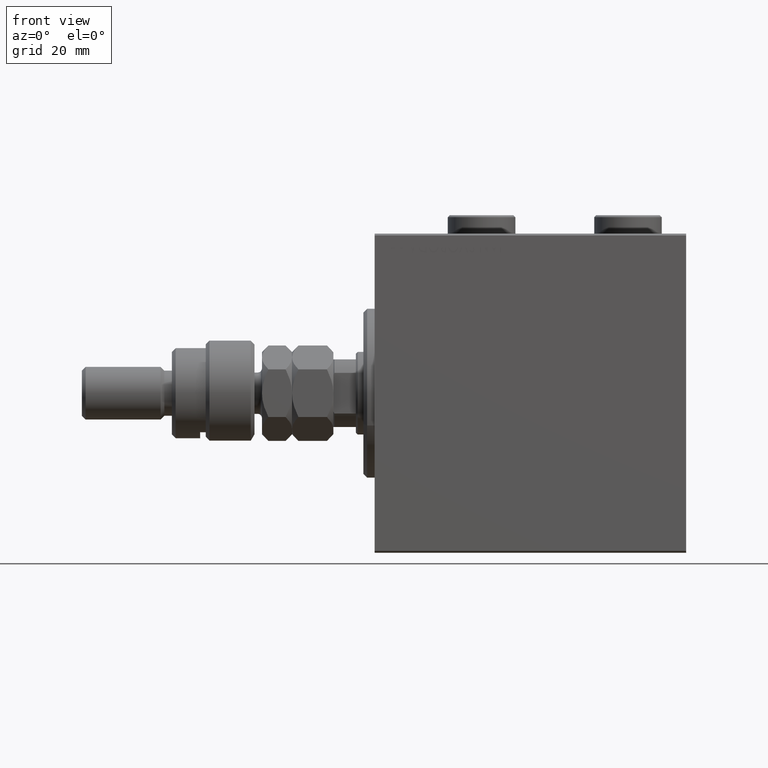
[diagram: clean part render]
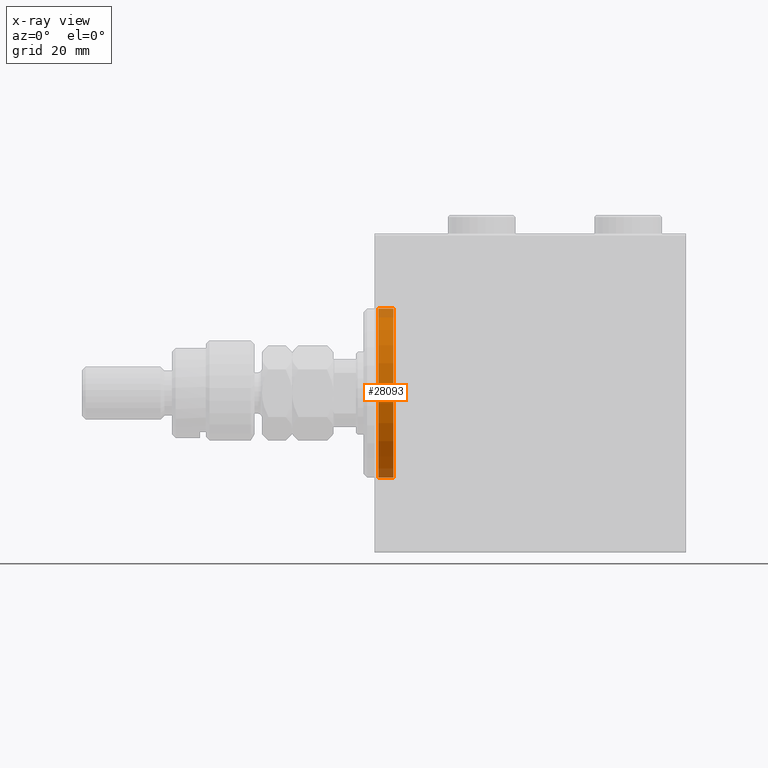
[diagram: x-ray — body ghosted, one internal face saturated and labeled with its STEP entity id]
A machine part, front view, then the same camera in x-ray: the body is ghosted and one INTERNAL B-rep face — a face not visible from any outside direction — is saturated and labeled: STEP entity #28093.
In plain terms, the highlighted cylindrical surface (partial cylindrical patch) has radius 22.5 mm, axis along (-1, -0, -0).
Its self-contained STEP definition (entity closure, byte-faithful):
#2053 = FACE_OUTER_BOUND ( 'NONE', #6399, .T. ) ;
#3164 = LINE ( 'NONE', #25480, #30526 ) ;
#4933 = VECTOR ( 'NONE', #27791, 1000.000000000000000 ) ;
#6399 = EDGE_LOOP ( 'NONE', ( #11376, #21808, #44462, #25880 ) ) ;
#6447 = AXIS2_PLACEMENT_3D ( 'NONE', #24112, #39543, #9811 ) ;
#7025 = DIRECTION ( 'NONE',  ( -1.000000000000000000, 0.000000000000000000, 0.000000000000000000 ) ) ;
#8901 = EDGE_CURVE ( 'NONE', #11849, #46112, #3164, .T. ) ;
#9811 = DIRECTION ( 'NONE',  ( 0.000000000000000000, 0.000000000000000000, 1.000000000000000000 ) ) ;
#10341 = LINE ( 'NONE', #25118, #4933 ) ;
#10368 = VERTEX_POINT ( 'NONE', #19061 ) ;
#11376 = ORIENTED_EDGE ( 'NONE', *, *, #25262, .F. ) ;
#11849 = VERTEX_POINT ( 'NONE', #21311 ) ;
#12929 = CIRCLE ( 'NONE', #39958, 22.50000000000000355 ) ;
#16417 = AXIS2_PLACEMENT_3D ( 'NONE', #33126, #18838, #37461 ) ;
#18526 = CARTESIAN_POINT ( 'NONE',  ( 5.000000000000000000, 2.755455298081545172E-15, -22.50000000000000355 ) ) ;
#18838 = DIRECTION ( 'NONE',  ( -1.000000000000000000, 0.000000000000000000, 0.000000000000000000 ) ) ;
#19061 = CARTESIAN_POINT ( 'NONE',  ( 1.000000000000014655, 2.755455298081545172E-15, -22.50000000000000355 ) ) ;
#21311 = CARTESIAN_POINT ( 'NONE',  ( 5.000000000000000000, 0.000000000000000000, 22.50000000000000355 ) ) ;
#21808 = ORIENTED_EDGE ( 'NONE', *, *, #30215, .T. ) ;
#21821 = DIRECTION ( 'NONE',  ( 0.000000000000000000, 0.000000000000000000, -1.000000000000000000 ) ) ;
#24112 = CARTESIAN_POINT ( 'NONE',  ( 5.000000000000000000, 0.000000000000000000, 0.000000000000000000 ) ) ;
#24813 = CYLINDRICAL_SURFACE ( 'NONE', #6447, 22.50000000000000355 ) ;
#25118 = CARTESIAN_POINT ( 'NONE',  ( 5.000000000000000000, 2.755455298081545172E-15, -22.50000000000000355 ) ) ;
#25262 = EDGE_CURVE ( 'NONE', #34543, #11849, #28774, .T. ) ;
#25480 = CARTESIAN_POINT ( 'NONE',  ( 5.000000000000000000, 0.000000000000000000, 22.50000000000000355 ) ) ;
#25880 = ORIENTED_EDGE ( 'NONE', *, *, #8901, .F. ) ;
#27791 = DIRECTION ( 'NONE',  ( -1.000000000000000000, -0.000000000000000000, -0.000000000000000000 ) ) ;
#28093 = ADVANCED_FACE ( 'NONE', ( #2053 ), #24813, .F. ) ;
#28774 = CIRCLE ( 'NONE', #16417, 22.50000000000000355 ) ;
#30060 = DIRECTION ( 'NONE',  ( -1.000000000000000000, -0.000000000000000000, -0.000000000000000000 ) ) ;
#30215 = EDGE_CURVE ( 'NONE', #34543, #10368, #10341, .T. ) ;
#30526 = VECTOR ( 'NONE', #30060, 1000.000000000000000 ) ;
#33126 = CARTESIAN_POINT ( 'NONE',  ( 5.000000000000000000, 0.000000000000000000, 0.000000000000000000 ) ) ;
#34543 = VERTEX_POINT ( 'NONE', #18526 ) ;
#37461 = DIRECTION ( 'NONE',  ( 0.000000000000000000, 0.000000000000000000, 1.000000000000000000 ) ) ;
#39543 = DIRECTION ( 'NONE',  ( -1.000000000000000000, -0.000000000000000000, -0.000000000000000000 ) ) ;
#39958 = AXIS2_PLACEMENT_3D ( 'NONE', #40179, #7025, #21821 ) ;
#39979 = EDGE_CURVE ( 'NONE', #10368, #46112, #12929, .T. ) ;
#40179 = CARTESIAN_POINT ( 'NONE',  ( 1.000000000000014655, 0.000000000000000000, 0.000000000000000000 ) ) ;
#43202 = CARTESIAN_POINT ( 'NONE',  ( 1.000000000000014655, 0.000000000000000000, 22.50000000000000355 ) ) ;
#44462 = ORIENTED_EDGE ( 'NONE', *, *, #39979, .T. ) ;
#46112 = VERTEX_POINT ( 'NONE', #43202 ) ;